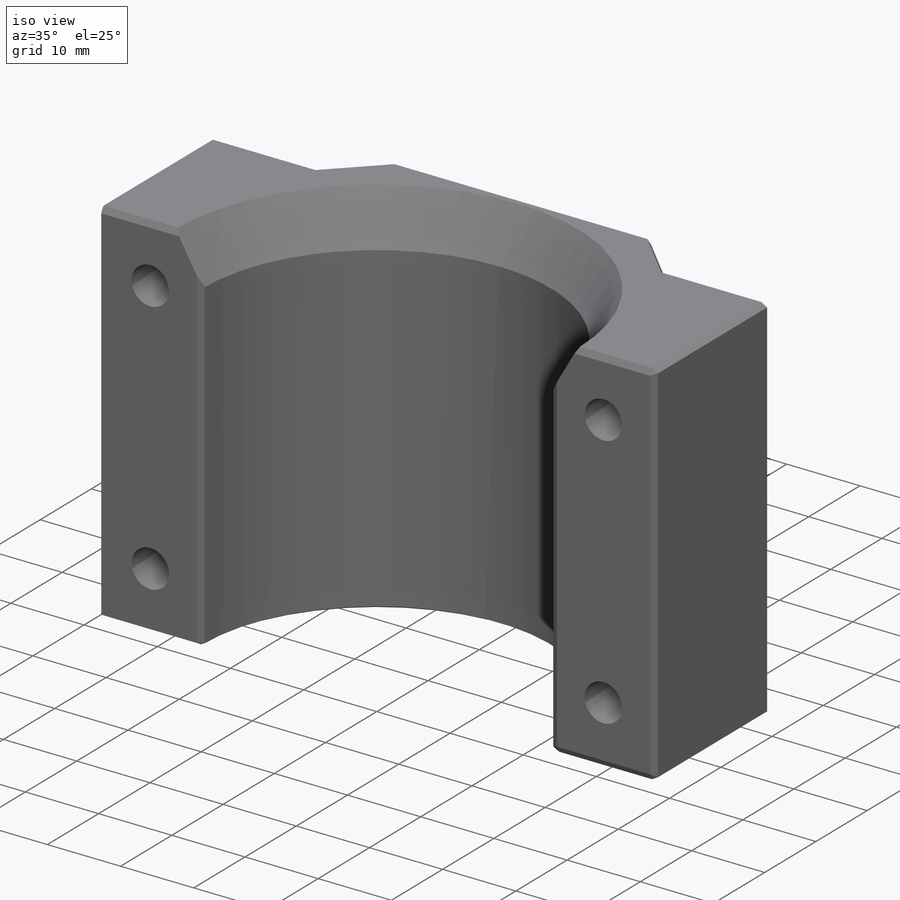
[diagram: iso view]
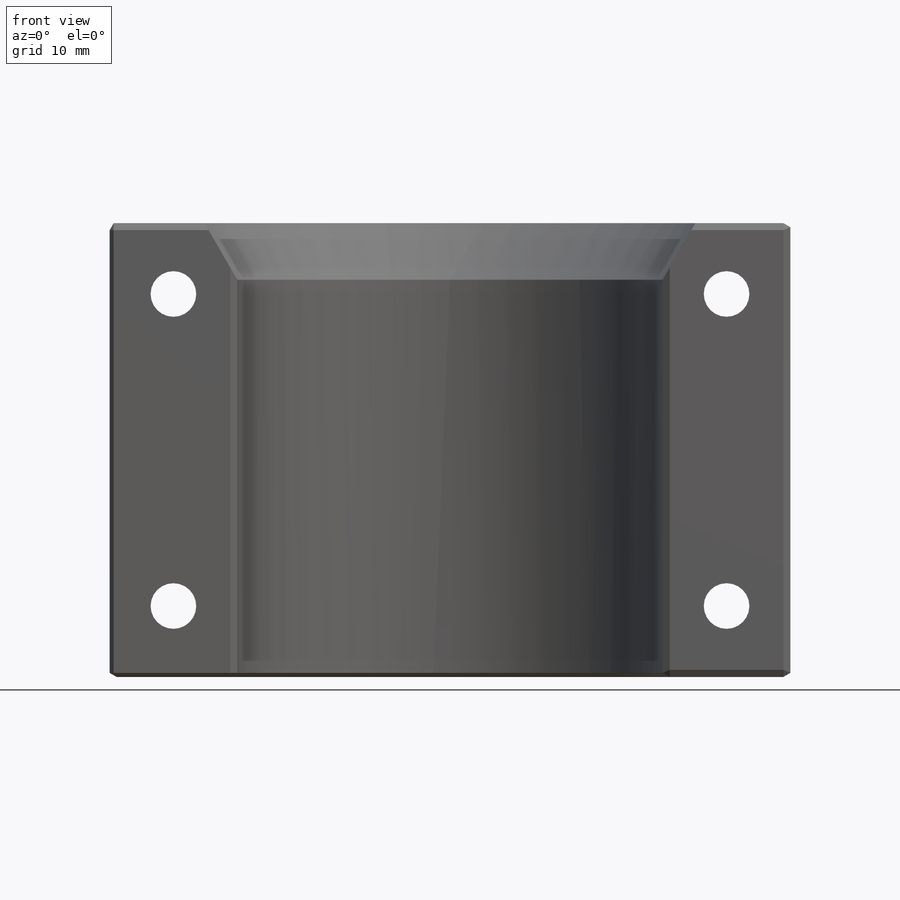
[diagram: front view]
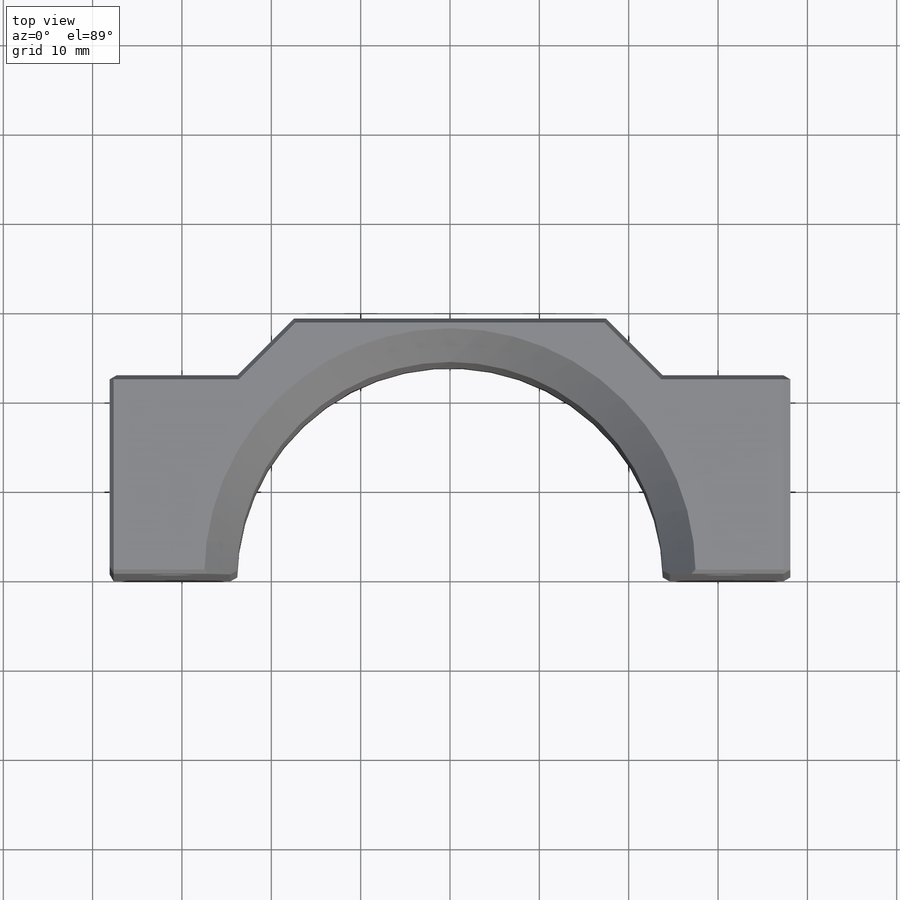
[diagram: top view]
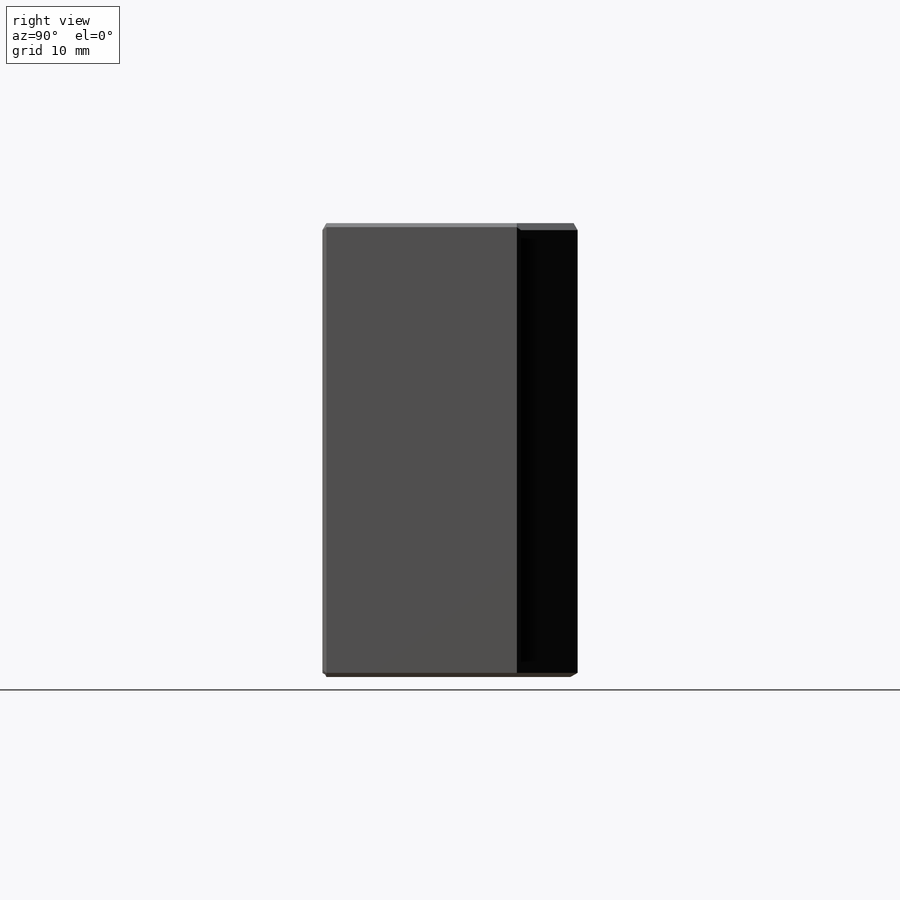
[diagram: right view]
SOLIDWORKS PART (.sldprt)
format: sldprt  version: not decoded by parser v0  size: 278,528 bytes
history: native  units: mm
features: sketch x3, chamfer x2, material x1, extrude x1, hole x1 (+15 scaffold rows collapsed)
feature tree (23):
  scaffold x15  (default folders/planes/origin — collapsed)
  material  "Material <not specified>"
  sketch  "Sketch1"  dims[c1.D1=47.625mm c1.D2=76.2mm c1.D3=22.225mm c1.D4=~8.399402mm c2.D4=45.0deg c2.D5=4.7625mm]
  extrude  "Boss-Extrude1"  Depth=50.8mm
  chamfer  "Chamfer1"  Distance=6.35mm Angle=30deg
  hole  "CBORE for #10 Socket Head Cap Screw1"  Diameter=5.1054mm Depth=22.225mm
  sketch  "Sketch3"  dims[c1.D1=61.9125mm c1.D2=34.925mm c2.D1=61.9125mm c2.D2=34.925mm]
  sketch  "Sketch2"  dims[hole-wizard template sketch: 42 standard entries collapsed; hole parameters kept: c12.Thru Hole Depth=22.225mm c12.C'Bore Dia.=9.525mm c12.C'Bore Depth=4.826mm c12.Near C'Sink Dia.=10.795mm c12.D6=~4.399409mm c12.Near C'Sink Angle=90.0deg]
  chamfer  "Chamfer2"  Distance=0.79375mm Angle=30deg
decode coverage: 7 of 7 modeling features carry decoded parameters
note: ~ marks probable driven/reference dimensions
note: suppression state not decoded; provenance and decode notes live in map.json
